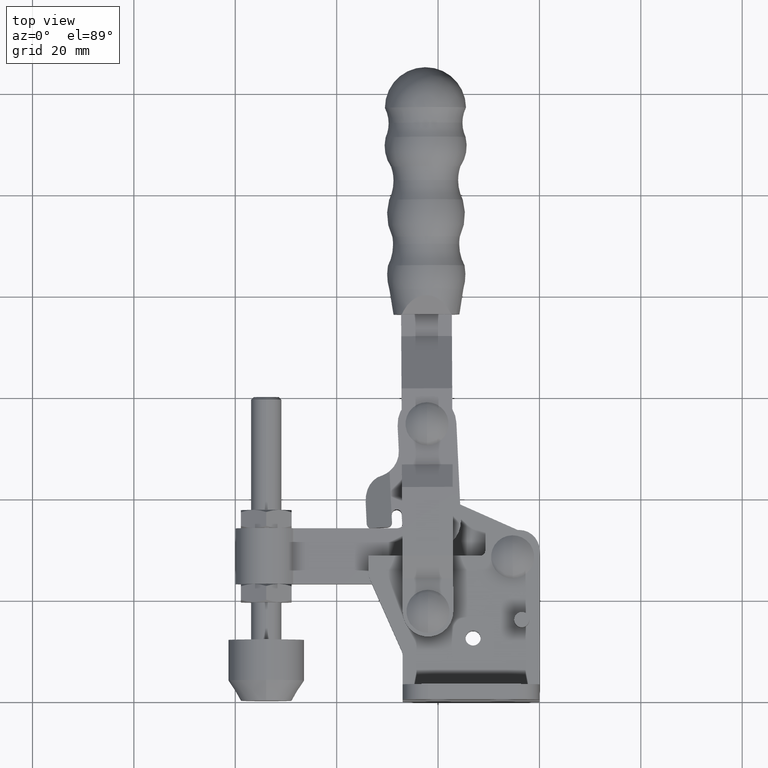
[diagram: clean part render]
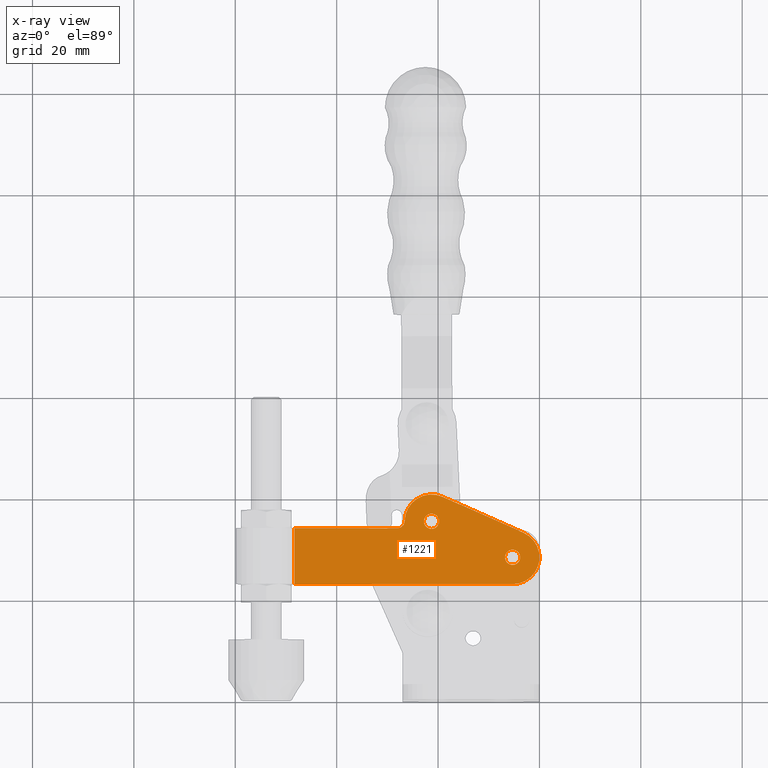
[diagram: x-ray — body ghosted, one internal face saturated and labeled with its STEP entity id]
A machine part, top view, then the same camera in x-ray: the body is ghosted and one INTERNAL B-rep face — a face not visible from any outside direction — is saturated and labeled: STEP entity #1221.
In plain terms, the highlighted planar face has unit normal (0, 0, 1).
Its self-contained STEP definition (entity closure, byte-faithful):
#160 = CARTESIAN_POINT ( 'NONE',  ( -28.08881537180537100, 34.00000000000511600, -2.999950000000150700 ) ) ;
#174 = VERTEX_POINT ( 'NONE', #9750 ) ;
#217 = CARTESIAN_POINT ( 'NONE',  ( -21.28955070567338100, 33.90000000000210900, -2.999950000000150700 ) ) ;
#249 = CARTESIAN_POINT ( 'NONE',  ( -21.28955070567269200, 35.40000000000210900, -2.999950000000150700 ) ) ;
#356 = VERTEX_POINT ( 'NONE', #5720 ) ;
#380 = EDGE_LOOP ( 'NONE', ( #4091, #8905 ) ) ;
#529 = DIRECTION ( 'NONE',  ( -3.784919257471419500E-018, -1.223578017607745500E-016, -1.000000000000000000 ) ) ;
#848 = FACE_BOUND ( 'NONE', #8673, .T. ) ;
#889 = ORIENTED_EDGE ( 'NONE', *, *, #5742, .T. ) ;
#902 = VECTOR ( 'NONE', #4695, 1000.000000000000000 ) ;
#1039 = DIRECTION ( 'NONE',  ( -4.615019058723609400E-013, -1.000000000000000000, 8.182657905538314600E-017 ) ) ;
#1092 = FACE_OUTER_BOUND ( 'NONE', #5154, .T. ) ;
#1209 = CARTESIAN_POINT ( 'NONE',  ( -26.58897757780678000, 35.47794117647507800, -2.999950000000150700 ) ) ;
#1221 = ADVANCED_FACE ( 'NONE', ( #5098, #848, #1092 ), #4705, .F. ) ;
#1273 = ORIENTED_EDGE ( 'NONE', *, *, #8999, .T. ) ;
#1392 = CARTESIAN_POINT ( 'NONE',  ( -5.289550705672565000, 28.30000000000242000, -2.999950000000149800 ) ) ;
#1461 = ORIENTED_EDGE ( 'NONE', *, *, #5743, .T. ) ;
#1572 = CARTESIAN_POINT ( 'NONE',  ( -28.08881537180468200, 35.50000000000510900, -2.999950000000150700 ) ) ;
#2180 = DIRECTION ( 'NONE',  ( -4.614364446098302800E-013, -1.000000000000000000, 0.0000000000000000000 ) ) ;
#2277 = DIRECTION ( 'NONE',  ( -3.784919257471419500E-018, -1.223578017607745500E-016, -1.000000000000000000 ) ) ;
#2388 = DIRECTION ( 'NONE',  ( -4.602799622925123800E-013, -1.000000000000000000, 0.0000000000000000000 ) ) ;
#2685 = CARTESIAN_POINT ( 'NONE',  ( -48.31272499237699200, 23.00000000002277600, -2.999950000000150700 ) ) ;
#2763 = VERTEX_POINT ( 'NONE', #7639 ) ;
#2801 = EDGE_CURVE ( 'NONE', #9223, #7172, #4561, .T. ) ;
#2806 = CIRCLE ( 'NONE', #8010, 5.300000000008201300 ) ;
#2872 = VERTEX_POINT ( 'NONE', #7357 ) ;
#3024 = LINE ( 'NONE', #9528, #902 ) ;
#3241 = CIRCLE ( 'NONE', #5286, 5.300000000000058400 ) ;
#3476 = AXIS2_PLACEMENT_3D ( 'NONE', #8595, #3773, #9399 ) ;
#3661 = DIRECTION ( 'NONE',  ( 0.9140469740094305800, -0.4056083447171709400, 4.616975144130767700E-017 ) ) ;
#3674 = AXIS2_PLACEMENT_3D ( 'NONE', #7046, #2277, #7874 ) ;
#3694 = CARTESIAN_POINT ( 'NONE',  ( -5.289550705675020800, 23.00000000000293100, -2.999950000000151100 ) ) ;
#3773 = DIRECTION ( 'NONE',  ( -3.784919257471419500E-018, -1.223578017607745500E-016, -1.000000000000000000 ) ) ;
#3873 = CIRCLE ( 'NONE', #3476, 1.500000000000001300 ) ;
#3970 = AXIS2_PLACEMENT_3D ( 'NONE', #1392, #6949, #2180 ) ;
#3993 = DIRECTION ( 'NONE',  ( -3.784919257471419500E-018, -1.223578017607745500E-016, -1.000000000000000000 ) ) ;
#4061 = VECTOR ( 'NONE', #8192, 1000.000000000000000 ) ;
#4088 = EDGE_CURVE ( 'NONE', #4547, #6677, #3024, .T. ) ;
#4091 = ORIENTED_EDGE ( 'NONE', *, *, #5683, .F. ) ;
#4095 = ORIENTED_EDGE ( 'NONE', *, *, #5392, .F. ) ;
#4477 = EDGE_CURVE ( 'NONE', #8060, #8969, #8947, .T. ) ;
#4547 = VERTEX_POINT ( 'NONE', #10298 ) ;
#4561 = LINE ( 'NONE', #7451, #4061 ) ;
#4606 = CARTESIAN_POINT ( 'NONE',  ( -21.28955070567199900, 36.90000000000210900, -2.999950000000150700 ) ) ;
#4695 = DIRECTION ( 'NONE',  ( 1.000000000000000000, -4.612629722622330100E-013, -3.784919257360370400E-018 ) ) ;
#4705 = PLANE ( 'NONE',  #4865 ) ;
#4840 = VECTOR ( 'NONE', #3661, 999.9999999999998900 ) ;
#4865 = AXIS2_PLACEMENT_3D ( 'NONE', #9002, #8790, #9594 ) ;
#5098 = FACE_BOUND ( 'NONE', #380, .T. ) ;
#5154 = EDGE_LOOP ( 'NONE', ( #1461, #6192, #4095, #6854, #889, #1273, #5828 ) ) ;
#5286 = AXIS2_PLACEMENT_3D ( 'NONE', #8827, #3993, #9621 ) ;
#5311 = CARTESIAN_POINT ( 'NONE',  ( -21.28955070567269200, 35.40000000000210900, -2.999950000000150700 ) ) ;
#5375 = ORIENTED_EDGE ( 'NONE', *, *, #8031, .F. ) ;
#5392 = EDGE_CURVE ( 'NONE', #4547, #7172, #7751, .T. ) ;
#5609 = AXIS2_PLACEMENT_3D ( 'NONE', #5311, #529, #6117 ) ;
#5630 = VECTOR ( 'NONE', #8258, 1000.000000000000000 ) ;
#5683 = EDGE_CURVE ( 'NONE', #8969, #8060, #6128, .T. ) ;
#5720 = CARTESIAN_POINT ( 'NONE',  ( -19.13982647866835400, 40.24444896225959000, -2.999950000000151600 ) ) ;
#5742 = EDGE_CURVE ( 'NONE', #6677, #7901, #8664, .T. ) ;
#5743 = EDGE_CURVE ( 'NONE', #174, #9223, #3241, .T. ) ;
#5819 = CARTESIAN_POINT ( 'NONE',  ( -48.31272499237690700, 23.00000000002277600, -2.999950000000151100 ) ) ;
#5828 = ORIENTED_EDGE ( 'NONE', *, *, #7947, .T. ) ;
#5832 = DIRECTION ( 'NONE',  ( -3.784919257471419500E-018, -1.223578017607745500E-016, -1.000000000000000000 ) ) ;
#5838 = EDGE_CURVE ( 'NONE', #2872, #2763, #3873, .T. ) ;
#6117 = DIRECTION ( 'NONE',  ( -4.602799622925123800E-013, -1.000000000000000000, 0.0000000000000000000 ) ) ;
#6128 = CIRCLE ( 'NONE', #3674, 1.500000000000001300 ) ;
#6192 = ORIENTED_EDGE ( 'NONE', *, *, #2801, .T. ) ;
#6677 = VERTEX_POINT ( 'NONE', #160 ) ;
#6854 = ORIENTED_EDGE ( 'NONE', *, *, #4088, .T. ) ;
#6949 = DIRECTION ( 'NONE',  ( -3.784919257471419500E-018, -1.223578017607745500E-016, -1.000000000000000000 ) ) ;
#7046 = CARTESIAN_POINT ( 'NONE',  ( -21.28955070567269200, 35.40000000000210900, -2.999950000000150700 ) ) ;
#7147 = DIRECTION ( 'NONE',  ( 3.784919257471419500E-018, 1.223578017607745500E-016, 1.000000000000000000 ) ) ;
#7172 = VERTEX_POINT ( 'NONE', #2685 ) ;
#7357 = CARTESIAN_POINT ( 'NONE',  ( -5.289550705671873100, 29.80000000000242000, -2.999950000000149800 ) ) ;
#7451 = CARTESIAN_POINT ( 'NONE',  ( -53.37762500623789900, 23.00000000002511100, -2.999950000000151100 ) ) ;
#7558 = CIRCLE ( 'NONE', #3970, 1.500000000000001300 ) ;
#7639 = CARTESIAN_POINT ( 'NONE',  ( -5.289550705673256900, 26.80000000000242000, -2.999950000000149800 ) ) ;
#7751 = LINE ( 'NONE', #5819, #5630 ) ;
#7767 = ORIENTED_EDGE ( 'NONE', *, *, #5838, .F. ) ;
#7874 = DIRECTION ( 'NONE',  ( -4.602799622925123800E-013, -1.000000000000000000, 0.0000000000000000000 ) ) ;
#7901 = VERTEX_POINT ( 'NONE', #1209 ) ;
#7947 = EDGE_CURVE ( 'NONE', #356, #174, #9127, .T. ) ;
#8010 = AXIS2_PLACEMENT_3D ( 'NONE', #249, #5832, #1039 ) ;
#8031 = EDGE_CURVE ( 'NONE', #2763, #2872, #7558, .T. ) ;
#8060 = VERTEX_POINT ( 'NONE', #4606 ) ;
#8192 = DIRECTION ( 'NONE',  ( -1.000000000000000000, 4.612629722622330100E-013, 3.784919257360370400E-018 ) ) ;
#8258 = DIRECTION ( 'NONE',  ( -4.612629722622330100E-013, -1.000000000000000000, 1.223578017607763500E-016 ) ) ;
#8480 = CARTESIAN_POINT ( 'NONE',  ( -19.13982647866835400, 40.24444896225959000, -2.999950000000151600 ) ) ;
#8595 = CARTESIAN_POINT ( 'NONE',  ( -5.289550705672565000, 28.30000000000242000, -2.999950000000149800 ) ) ;
#8664 = CIRCLE ( 'NONE', #9084, 1.500000000000001300 ) ;
#8673 = EDGE_LOOP ( 'NONE', ( #5375, #7767 ) ) ;
#8790 = DIRECTION ( 'NONE',  ( 3.784919257471419500E-018, 1.223578017607746000E-016, 1.000000000000000000 ) ) ;
#8827 = CARTESIAN_POINT ( 'NONE',  ( -5.289550705672565000, 28.30000000000242000, -2.999950000000149800 ) ) ;
#8905 = ORIENTED_EDGE ( 'NONE', *, *, #4477, .F. ) ;
#8947 = CIRCLE ( 'NONE', #5609, 1.500000000000001300 ) ;
#8969 = VERTEX_POINT ( 'NONE', #217 ) ;
#8999 = EDGE_CURVE ( 'NONE', #7901, #356, #2806, .T. ) ;
#9002 = CARTESIAN_POINT ( 'NONE',  ( -53.37762500622972800, 40.70000000002511300, -2.999950000000153300 ) ) ;
#9084 = AXIS2_PLACEMENT_3D ( 'NONE', #1572, #7147, #2388 ) ;
#9127 = LINE ( 'NONE', #8480, #4840 ) ;
#9223 = VERTEX_POINT ( 'NONE', #3694 ) ;
#9399 = DIRECTION ( 'NONE',  ( -4.614364446098302800E-013, -1.000000000000000000, 0.0000000000000000000 ) ) ;
#9528 = CARTESIAN_POINT ( 'NONE',  ( -59.98955070566976400, 34.00000000001983100, -2.999950000000150700 ) ) ;
#9594 = DIRECTION ( 'NONE',  ( -4.612629722622330100E-013, -1.000000000000000000, 1.223578017607763500E-016 ) ) ;
#9621 = DIRECTION ( 'NONE',  ( -4.613382527149589700E-013, -1.000000000000000000, 8.182657905550887100E-017 ) ) ;
#9750 = CARTESIAN_POINT ( 'NONE',  ( -3.139826478671530600, 33.14444896225248300, -2.999950000000150700 ) ) ;
#10298 = CARTESIAN_POINT ( 'NONE',  ( -48.31272499237182700, 34.00000000001444500, -2.999950000000152400 ) ) ;